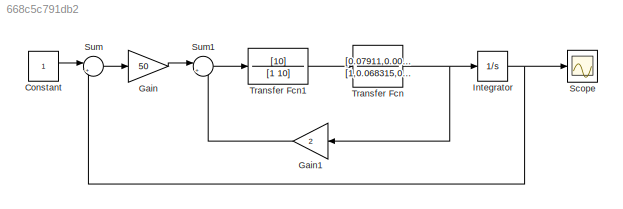
MODEL slx_668c5c791db2
KIND model
CONFIG AbsTol = auto
CONFIG EnableMultiTasking = off
CONFIG FixedStep = auto
CONFIG MaxStep = auto
CONFIG MinStep = auto
CONFIG RelTol = 1e-3
CONFIG SampleTimeConstraint = Unconstrained
CONFIG Solver = VariableStepAuto
CONFIG SolverName = VariableStepAuto
CONFIG StartTime = 0.0
CONFIG StopTime = 10
BLOCK [Constant] Constant
BLOCK [Gain] Gain
  Gain = 50
BLOCK [Gain] Gain1
  Gain = 2
  NameLocation = top
BLOCK [Integrator] Integrator
  Ports = [1, 1]
BLOCK [Scope] Scope
  Floating = off
  NumInputPorts = 1
  Ports = [1]
  ScopeSpecificationString = Simulink.scopes.TimeScopeBlockCfg('CurrentConfiguration', extmgr.ConfigurationSet(extmgr.Configuration('Core','General UI',true),extmgr.Configuration('Core','Source UI',true),extmgr.Configuration('Sources','WiredSimulink',true),extmgr.Configuration('Visuals','Time Domain',true,'SerializedDisplays',{struct('MinYLimReal','-2.04671','MaxYLimReal','1.2119','YLabelReal','','MinYLimMag','0.00000','MaxYL...<+1380ch>
BLOCK [Sum] Sum
  Inputs = |+-
  Ports = [2, 1]
BLOCK [Sum] Sum1
  Inputs = |+-
  Ports = [2, 1]
BLOCK [TransferFcn] Transfer Fcn
  Denominator = [1,0.068315,0.022]
  Numerator = [0.07911,0.005404,0]
BLOCK [TransferFcn] Transfer Fcn1
  Denominator = [1 10]
  Numerator = [10]
LINE Constant:1 -> Sum:1
LINE Gain1:1 -> Sum1:2
LINE Gain:1 -> Sum1:1
NET Integrator:1 -> Scope:1, Sum:2
LINE Sum1:1 -> Transfer Fcn1:1
LINE Sum:1 -> Gain:1
LINE Transfer Fcn1:1 -> Transfer Fcn:1
NET Transfer Fcn:1 -> Gain1:1, Integrator:1
note: NET lines group one-source signal fan-out (src -> all destinations, sorted); 1:1 wires keep LINE
